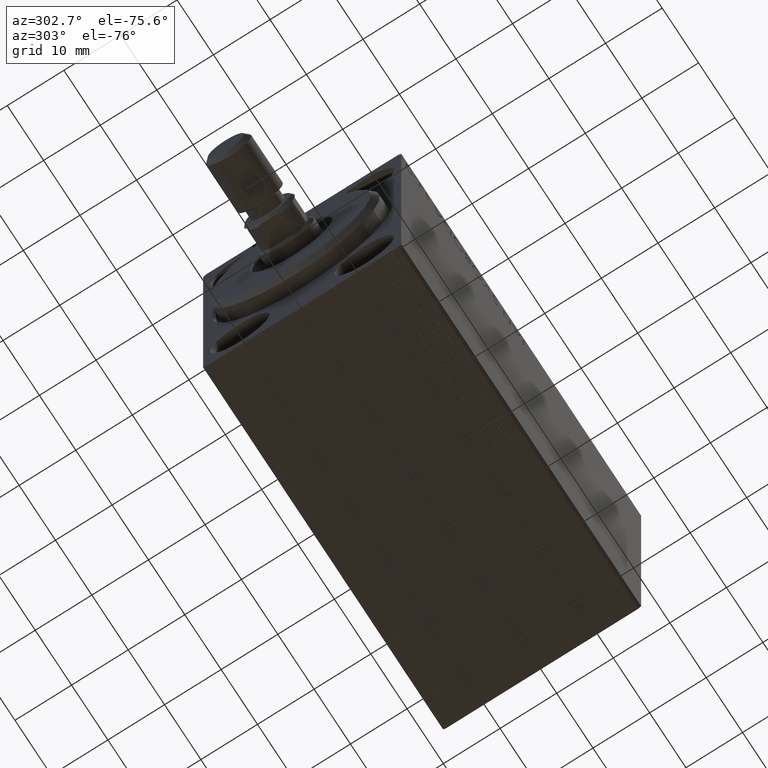
[diagram: clean part render]
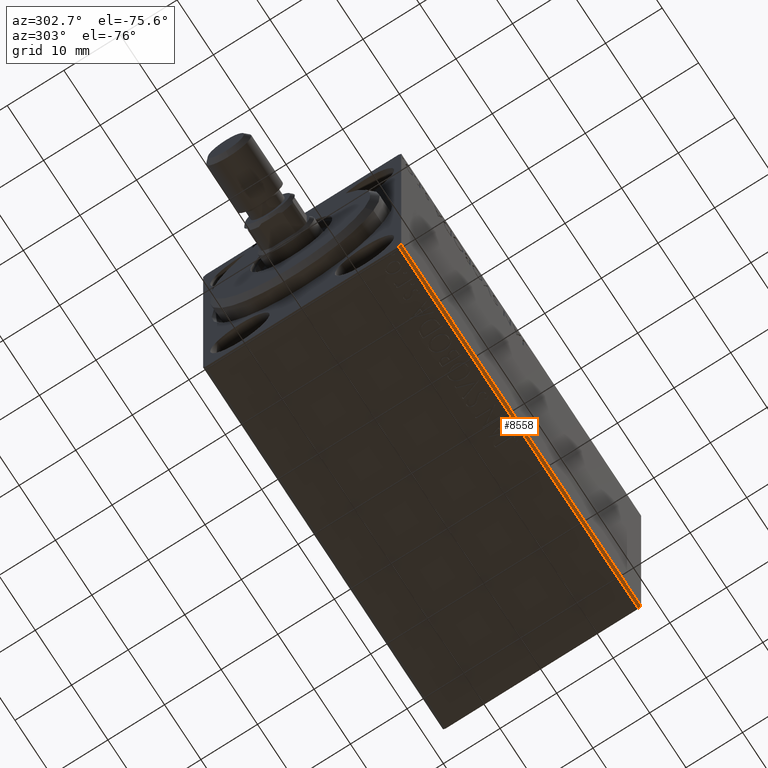
[diagram: same view with one face highlighted and labeled with its STEP entity id]
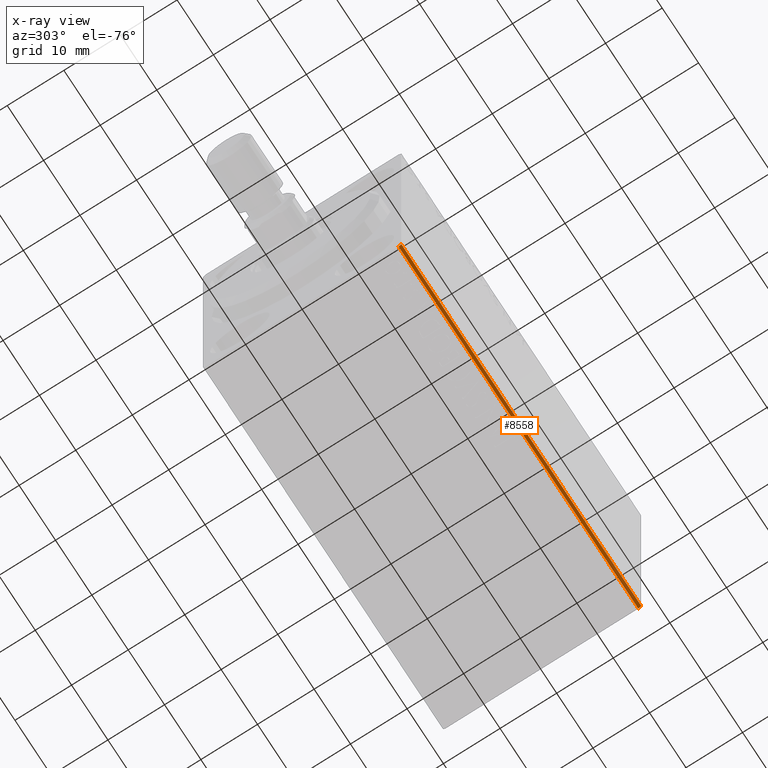
[diagram: x-ray of the same camera — body ghosted, the highlighted face saturated]
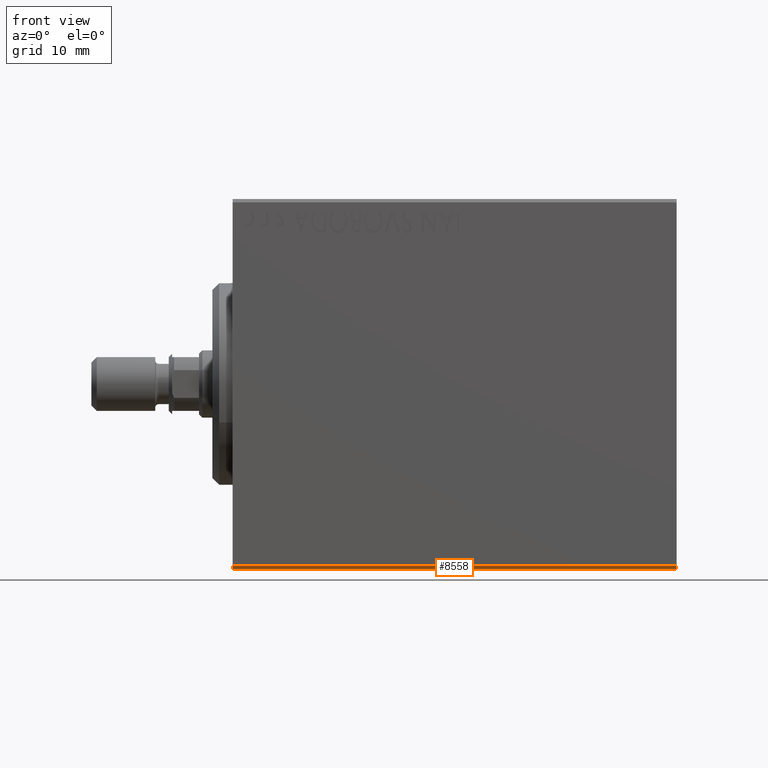
[diagram: same view with one face highlighted and labeled with its STEP entity id]
A machine part, auxiliary view. The second image highlights one B-rep face of the part: STEP entity #8558.
The next image is the same camera in x-ray: the body ghosted, the highlighted face saturated — about 0% of this face is hidden behind the body in this view.
A second angle (front view) of the same face is appended — the face is thin or edge-on in the first view.
In plain terms, the highlighted planar face has unit normal (0, 0.7071, 0.7071).
Its self-contained STEP definition (entity closure, byte-faithful):
#1150 = CARTESIAN_POINT ( 'NONE',  ( 66.00000000000000000, -17.00000000000000000, -27.50000000000000355 ) ) ;
#4196 = VERTEX_POINT ( 'NONE', #1150 ) ;
#6721 = CARTESIAN_POINT ( 'NONE',  ( 66.00000000000000000, -17.50000000000000000, -27.00000000000000355 ) ) ;
#7392 = FACE_OUTER_BOUND ( 'NONE', #26495, .T. ) ;
#8558 = ADVANCED_FACE ( 'NONE', ( #7392 ), #31811, .F. ) ;
#8909 = CARTESIAN_POINT ( 'NONE',  ( 66.00000000000000000, -17.50000000000000000, -27.00000000000000355 ) ) ;
#8957 = CARTESIAN_POINT ( 'NONE',  ( 0.000000000000000000, -17.00000000000000000, -27.50000000000000355 ) ) ;
#11204 = DIRECTION ( 'NONE',  ( 0.000000000000000000, 0.7071067811865475727, 0.7071067811865475727 ) ) ;
#13818 = DIRECTION ( 'NONE',  ( -1.000000000000000000, 0.000000000000000000, 0.000000000000000000 ) ) ;
#14022 = CARTESIAN_POINT ( 'NONE',  ( 0.000000000000000000, -17.50000000000000000, -27.00000000000000355 ) ) ;
#14339 = ORIENTED_EDGE ( 'NONE', *, *, #17601, .F. ) ;
#16075 = DIRECTION ( 'NONE',  ( 1.000000000000000000, 0.000000000000000000, 0.000000000000000000 ) ) ;
#16352 = LINE ( 'NONE', #8957, #41956 ) ;
#17601 = EDGE_CURVE ( 'NONE', #19018, #41480, #26380, .T. ) ;
#18148 = LINE ( 'NONE', #44400, #27049 ) ;
#19018 = VERTEX_POINT ( 'NONE', #14022 ) ;
#19692 = VECTOR ( 'NONE', #13818, 1000.000000000000000 ) ;
#19755 = VERTEX_POINT ( 'NONE', #32421 ) ;
#19947 = DIRECTION ( 'NONE',  ( -0.000000000000000000, -0.7071067811865474617, 0.7071067811865474617 ) ) ;
#21068 = DIRECTION ( 'NONE',  ( -1.000000000000000000, -0.000000000000000000, 0.000000000000000000 ) ) ;
#21412 = AXIS2_PLACEMENT_3D ( 'NONE', #31159, #11204, #21068 ) ;
#24124 = CARTESIAN_POINT ( 'NONE',  ( 66.00000000000000000, -17.00000000000000000, -27.50000000000000355 ) ) ;
#26380 = LINE ( 'NONE', #8909, #43007 ) ;
#26495 = EDGE_LOOP ( 'NONE', ( #44045, #14339, #32103, #40505 ) ) ;
#27049 = VECTOR ( 'NONE', #41034, 1000.000000000000114 ) ;
#31159 = CARTESIAN_POINT ( 'NONE',  ( 66.00000000000000000, -17.00000000000000000, -27.50000000000000355 ) ) ;
#31463 = EDGE_CURVE ( 'NONE', #19755, #19018, #16352, .T. ) ;
#31811 = PLANE ( 'NONE',  #21412 ) ;
#32103 = ORIENTED_EDGE ( 'NONE', *, *, #31463, .F. ) ;
#32421 = CARTESIAN_POINT ( 'NONE',  ( 0.000000000000000000, -17.00000000000000000, -27.50000000000000355 ) ) ;
#34660 = LINE ( 'NONE', #24124, #19692 ) ;
#34774 = EDGE_CURVE ( 'NONE', #4196, #19755, #34660, .T. ) ;
#40505 = ORIENTED_EDGE ( 'NONE', *, *, #34774, .F. ) ;
#41034 = DIRECTION ( 'NONE',  ( -0.000000000000000000, 0.7071067811865474617, -0.7071067811865474617 ) ) ;
#41480 = VERTEX_POINT ( 'NONE', #6721 ) ;
#41956 = VECTOR ( 'NONE', #19947, 1000.000000000000114 ) ;
#42448 = EDGE_CURVE ( 'NONE', #41480, #4196, #18148, .T. ) ;
#43007 = VECTOR ( 'NONE', #16075, 1000.000000000000000 ) ;
#44045 = ORIENTED_EDGE ( 'NONE', *, *, #42448, .F. ) ;
#44400 = CARTESIAN_POINT ( 'NONE',  ( 66.00000000000000000, -22.25000000000000355, -22.25000000000000355 ) ) ;